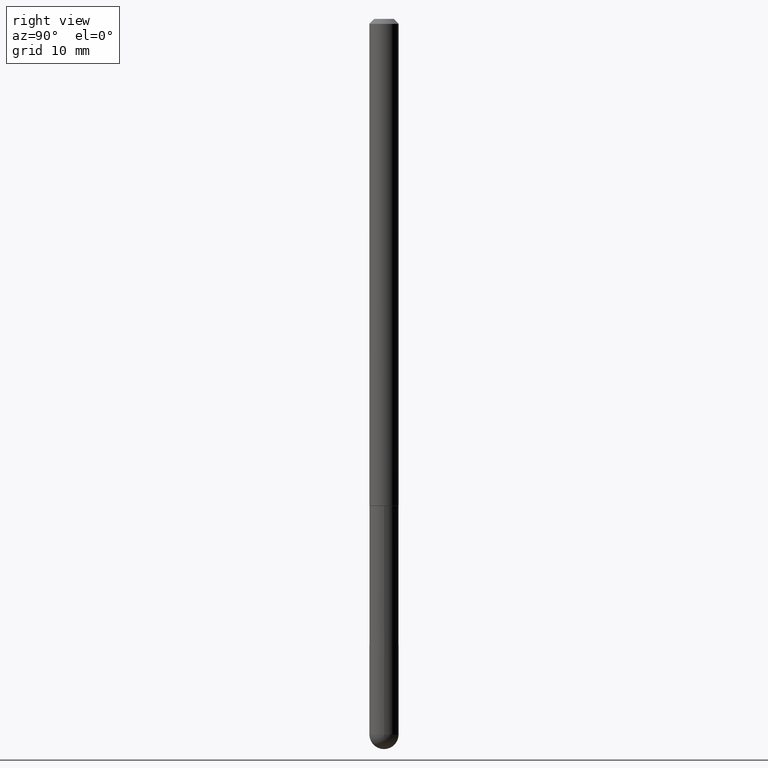
[diagram: clean part render]
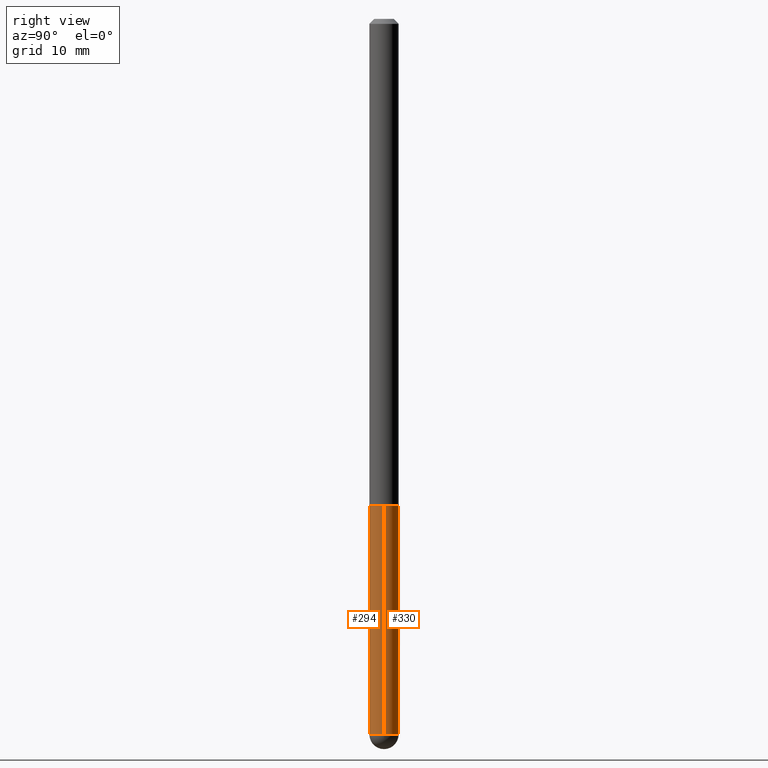
[diagram: same view with one multi-face feature highlighted, each face labeled with its STEP entity id]
A machine part, right view. The highlighted faces form ONE feature: a constant-radius fillet chain: 2 tangent blend faces with common blend radius 1.4999 mm. The faces share edges in the B-rep.
Their STEP definitions:
[1] entity #294 (Cylinder):
#3 = VERTEX_POINT ( 'NONE', #348 ) ;
#5 = EDGE_LOOP ( 'NONE', ( #164, #59, #326, #234, #73 ) ) ;
#10 = EDGE_CURVE ( 'NONE', #196, #380, #329, .T. ) ;
#29 = CIRCLE ( 'NONE', #268, 0.05905000000000001914 ) ;
#32 = LINE ( 'NONE', #401, #407 ) ;
#44 = DIRECTION ( 'NONE',  ( 1.000000000000000000, -6.982962677686270655E-15, 0.000000000000000000 ) ) ;
#53 = FACE_OUTER_BOUND ( 'NONE', #5, .T. ) ;
#59 = ORIENTED_EDGE ( 'NONE', *, *, #10, .T. ) ;
#70 = DIRECTION ( 'NONE',  ( -2.445468806185136597E-29, 3.491481338843145583E-15, 1.000000000000000000 ) ) ;
#73 = ORIENTED_EDGE ( 'NONE', *, *, #304, .F. ) ;
#86 = DIRECTION ( 'NONE',  ( -2.445468806185136597E-29, 3.491481338843145583E-15, 1.000000000000000000 ) ) ;
#101 = CARTESIAN_POINT ( 'NONE',  ( -4.195754854662709114E-16, -0.05905000000001047605, -2.893749999999999822 ) ) ;
#119 = CARTESIAN_POINT ( 'NONE',  ( 0.000000000000000000, 0.000000000000000000, 0.000000000000000000 ) ) ;
#123 = DIRECTION ( 'NONE',  ( -2.445468806185136877E-29, 3.491481338843145188E-15, 1.000000000000000000 ) ) ;
#142 = CARTESIAN_POINT ( 'NONE',  ( 7.076575357898237682E-29, -1.010347412427735067E-14, -2.893749999999999822 ) ) ;
#155 = DIRECTION ( 'NONE',  ( -2.445468806185136597E-29, 3.491481338843145583E-15, 1.000000000000000000 ) ) ;
#157 = DIRECTION ( 'NONE',  ( 1.000000000000000000, -6.982962677686270655E-15, 0.000000000000000000 ) ) ;
#159 = CARTESIAN_POINT ( 'NONE',  ( 7.076575357898237682E-29, -1.010347412427735067E-14, -2.893749999999999822 ) ) ;
#164 = ORIENTED_EDGE ( 'NONE', *, *, #306, .F. ) ;
#169 = CIRCLE ( 'NONE', #331, 0.05905000000000001914 ) ;
#196 = VERTEX_POINT ( 'NONE', #242 ) ;
#201 = VERTEX_POINT ( 'NONE', #238 ) ;
#210 = CARTESIAN_POINT ( 'NONE',  ( 4.813905344975440714E-29, -6.872981015512730918E-15, -1.968499999999999694 ) ) ;
#211 = AXIS2_PLACEMENT_3D ( 'NONE', #142, #70, #44 ) ;
#214 = DIRECTION ( 'NONE',  ( 1.000000000000000000, -6.982962677686270655E-15, 0.000000000000000000 ) ) ;
#234 = ORIENTED_EDGE ( 'NONE', *, *, #397, .T. ) ;
#238 = CARTESIAN_POINT ( 'NONE',  ( 0.05905000000000001914, -8.900571516012416899E-15, -2.893749999999999822 ) ) ;
#242 = CARTESIAN_POINT ( 'NONE',  ( -0.05905000000000001914, -8.068652084428701697E-15, -2.893749999999999822 ) ) ;
#246 = CARTESIAN_POINT ( 'NONE',  ( -0.05905000000000001914, 4.195754854663392958E-16, -2.904631170795522943E-30 ) ) ;
#253 = EDGE_CURVE ( 'NONE', #380, #201, #29, .T. ) ;
#255 = DIRECTION ( 'NONE',  ( -2.445468806185136877E-29, 3.491481338843145188E-15, 1.000000000000000000 ) ) ;
#258 = VERTEX_POINT ( 'NONE', #303 ) ;
#268 = AXIS2_PLACEMENT_3D ( 'NONE', #159, #155, #214 ) ;
#274 = LINE ( 'NONE', #246, #389 ) ;
#294 = ADVANCED_FACE ( 'NONE', ( #53 ), #394, .T. ) ;
#301 = AXIS2_PLACEMENT_3D ( 'NONE', #119, #86, #362 ) ;
#303 = CARTESIAN_POINT ( 'NONE',  ( -0.05905000000000001914, -8.068652084428701697E-15, -1.968499999999999694 ) ) ;
#304 = EDGE_CURVE ( 'NONE', #258, #3, #169, .T. ) ;
#306 = EDGE_CURVE ( 'NONE', #196, #258, #274, .T. ) ;
#326 = ORIENTED_EDGE ( 'NONE', *, *, #253, .T. ) ;
#329 = CIRCLE ( 'NONE', #211, 0.05905000000000001914 ) ;
#331 = AXIS2_PLACEMENT_3D ( 'NONE', #210, #332, #157 ) ;
#332 = DIRECTION ( 'NONE',  ( -2.445468806185136597E-29, 3.491481338843145583E-15, 1.000000000000000000 ) ) ;
#348 = CARTESIAN_POINT ( 'NONE',  ( 0.05905000000000001914, -7.285324961630105839E-15, -1.968499999999999694 ) ) ;
#362 = DIRECTION ( 'NONE',  ( 1.000000000000000000, -6.982962677686266711E-15, 4.876176775795935793E-29 ) ) ;
#380 = VERTEX_POINT ( 'NONE', #101 ) ;
#389 = VECTOR ( 'NONE', #123, 39.37007874015748143 ) ;
#394 = CYLINDRICAL_SURFACE ( 'NONE', #301, 0.05905000000000001914 ) ;
#397 = EDGE_CURVE ( 'NONE', #201, #3, #32, .T. ) ;
#401 = CARTESIAN_POINT ( 'NONE',  ( 0.05905000000000001914, -4.123439461173741806E-16, 2.879382386107500921E-30 ) ) ;
#407 = VECTOR ( 'NONE', #255, 39.37007874015748143 ) ;
[2] entity #330 (Cylinder):
#3 = VERTEX_POINT ( 'NONE', #348 ) ;
#9 = ORIENTED_EDGE ( 'NONE', *, *, #318, .F. ) ;
#21 = DIRECTION ( 'NONE',  ( -2.445468806185136597E-29, 3.491481338843145583E-15, 1.000000000000000000 ) ) ;
#23 = FACE_OUTER_BOUND ( 'NONE', #117, .T. ) ;
#31 = ORIENTED_EDGE ( 'NONE', *, *, #224, .T. ) ;
#32 = LINE ( 'NONE', #401, #407 ) ;
#61 = EDGE_CURVE ( 'NONE', #201, #144, #89, .T. ) ;
#80 = AXIS2_PLACEMENT_3D ( 'NONE', #158, #21, #399 ) ;
#82 = ORIENTED_EDGE ( 'NONE', *, *, #61, .T. ) ;
#89 = CIRCLE ( 'NONE', #80, 0.05905000000000001914 ) ;
#90 = AXIS2_PLACEMENT_3D ( 'NONE', #387, #392, #118 ) ;
#117 = EDGE_LOOP ( 'NONE', ( #31, #236, #9, #146, #82 ) ) ;
#118 = DIRECTION ( 'NONE',  ( 1.000000000000000000, -6.982962677686270655E-15, 0.000000000000000000 ) ) ;
#123 = DIRECTION ( 'NONE',  ( -2.445468806185136877E-29, 3.491481338843145188E-15, 1.000000000000000000 ) ) ;
#141 = CIRCLE ( 'NONE', #265, 0.05905000000000001914 ) ;
#144 = VERTEX_POINT ( 'NONE', #222 ) ;
#146 = ORIENTED_EDGE ( 'NONE', *, *, #397, .F. ) ;
#158 = CARTESIAN_POINT ( 'NONE',  ( 7.076575357898237682E-29, -1.010347412427735067E-14, -2.893749999999999822 ) ) ;
#165 = DIRECTION ( 'NONE',  ( -2.445468806185136597E-29, 3.491481338843145583E-15, 1.000000000000000000 ) ) ;
#184 = AXIS2_PLACEMENT_3D ( 'NONE', #286, #284, #220 ) ;
#196 = VERTEX_POINT ( 'NONE', #242 ) ;
#201 = VERTEX_POINT ( 'NONE', #238 ) ;
#212 = CIRCLE ( 'NONE', #90, 0.05905000000000001914 ) ;
#220 = DIRECTION ( 'NONE',  ( 1.000000000000000000, -6.982962677686266711E-15, 4.876176775795935793E-29 ) ) ;
#222 = CARTESIAN_POINT ( 'NONE',  ( 4.123439461174440441E-16, 0.05904999999998979815, -2.893749999999999822 ) ) ;
#224 = EDGE_CURVE ( 'NONE', #144, #196, #212, .T. ) ;
#236 = ORIENTED_EDGE ( 'NONE', *, *, #306, .T. ) ;
#238 = CARTESIAN_POINT ( 'NONE',  ( 0.05905000000000001914, -8.900571516012416899E-15, -2.893749999999999822 ) ) ;
#242 = CARTESIAN_POINT ( 'NONE',  ( -0.05905000000000001914, -8.068652084428701697E-15, -2.893749999999999822 ) ) ;
#246 = CARTESIAN_POINT ( 'NONE',  ( -0.05905000000000001914, 4.195754854663392958E-16, -2.904631170795522943E-30 ) ) ;
#255 = DIRECTION ( 'NONE',  ( -2.445468806185136877E-29, 3.491481338843145188E-15, 1.000000000000000000 ) ) ;
#258 = VERTEX_POINT ( 'NONE', #303 ) ;
#265 = AXIS2_PLACEMENT_3D ( 'NONE', #342, #165, #337 ) ;
#274 = LINE ( 'NONE', #246, #389 ) ;
#284 = DIRECTION ( 'NONE',  ( -2.445468806185136597E-29, 3.491481338843145583E-15, 1.000000000000000000 ) ) ;
#286 = CARTESIAN_POINT ( 'NONE',  ( 0.000000000000000000, 0.000000000000000000, 0.000000000000000000 ) ) ;
#303 = CARTESIAN_POINT ( 'NONE',  ( -0.05905000000000001914, -8.068652084428701697E-15, -1.968499999999999694 ) ) ;
#306 = EDGE_CURVE ( 'NONE', #196, #258, #274, .T. ) ;
#318 = EDGE_CURVE ( 'NONE', #3, #258, #141, .T. ) ;
#330 = ADVANCED_FACE ( 'NONE', ( #23 ), #340, .T. ) ;
#337 = DIRECTION ( 'NONE',  ( 1.000000000000000000, -6.982962677686270655E-15, 0.000000000000000000 ) ) ;
#340 = CYLINDRICAL_SURFACE ( 'NONE', #184, 0.05905000000000001914 ) ;
#342 = CARTESIAN_POINT ( 'NONE',  ( 4.813905344975440714E-29, -6.872981015512730918E-15, -1.968499999999999694 ) ) ;
#348 = CARTESIAN_POINT ( 'NONE',  ( 0.05905000000000001914, -7.285324961630105839E-15, -1.968499999999999694 ) ) ;
#387 = CARTESIAN_POINT ( 'NONE',  ( 7.076575357898237682E-29, -1.010347412427735067E-14, -2.893749999999999822 ) ) ;
#389 = VECTOR ( 'NONE', #123, 39.37007874015748143 ) ;
#392 = DIRECTION ( 'NONE',  ( -2.445468806185136597E-29, 3.491481338843145583E-15, 1.000000000000000000 ) ) ;
#397 = EDGE_CURVE ( 'NONE', #201, #3, #32, .T. ) ;
#399 = DIRECTION ( 'NONE',  ( 1.000000000000000000, -6.982962677686270655E-15, 0.000000000000000000 ) ) ;
#401 = CARTESIAN_POINT ( 'NONE',  ( 0.05905000000000001914, -4.123439461173741806E-16, 2.879382386107500921E-30 ) ) ;
#407 = VECTOR ( 'NONE', #255, 39.37007874015748143 ) ;